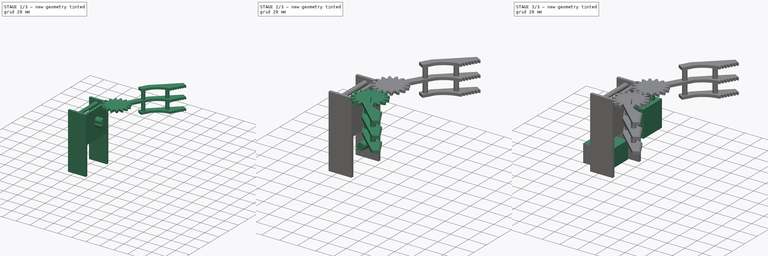
[diagram: build sequence overview — one tinted view per stage of 3, left to right]
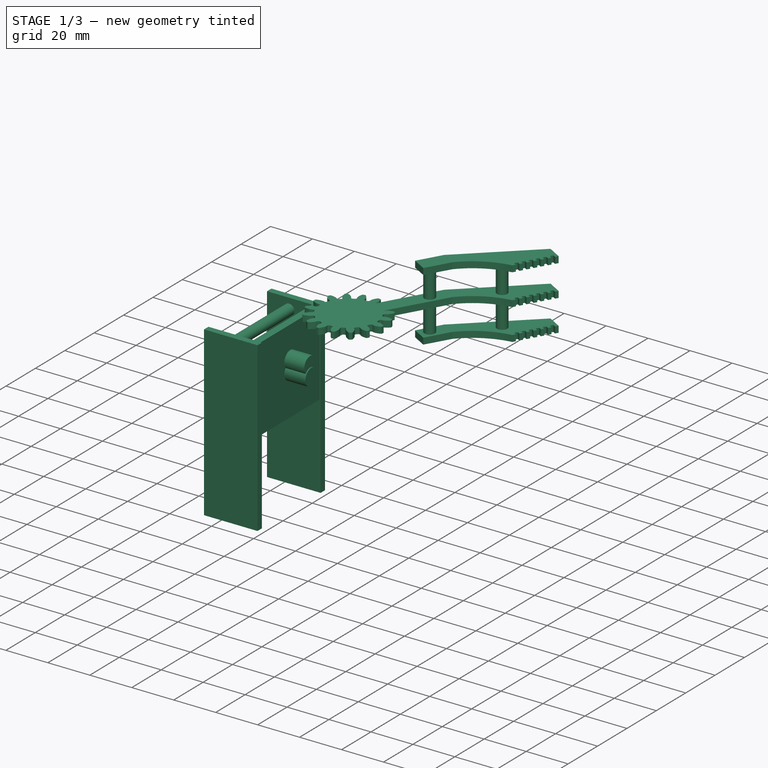
[diagram: stage 1 of 3 — iso view after this stage's code; geometry added in this stage tinted green]
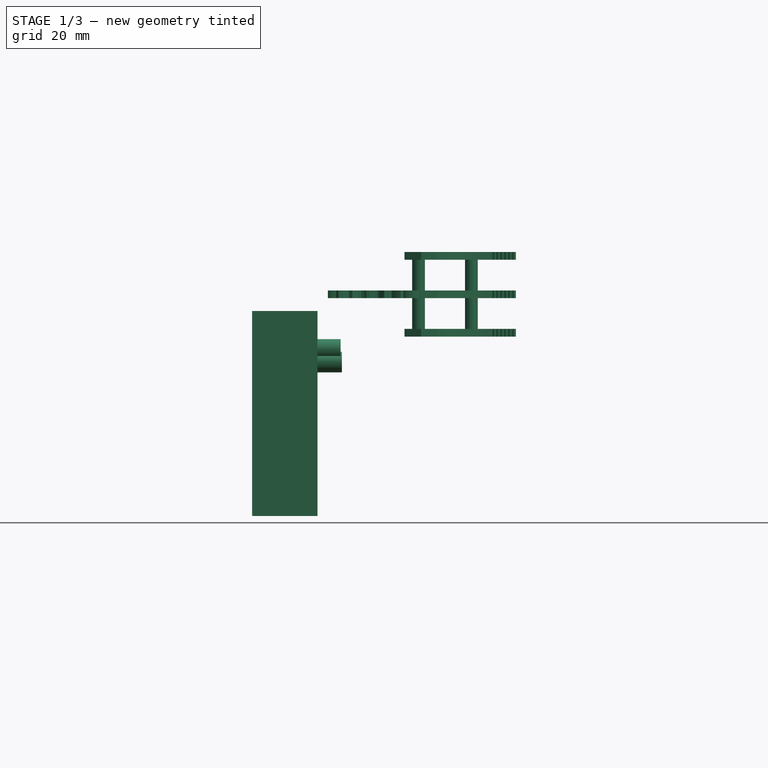
[diagram: stage 1 of 3 — front view after this stage's code; geometry added in this stage tinted green]
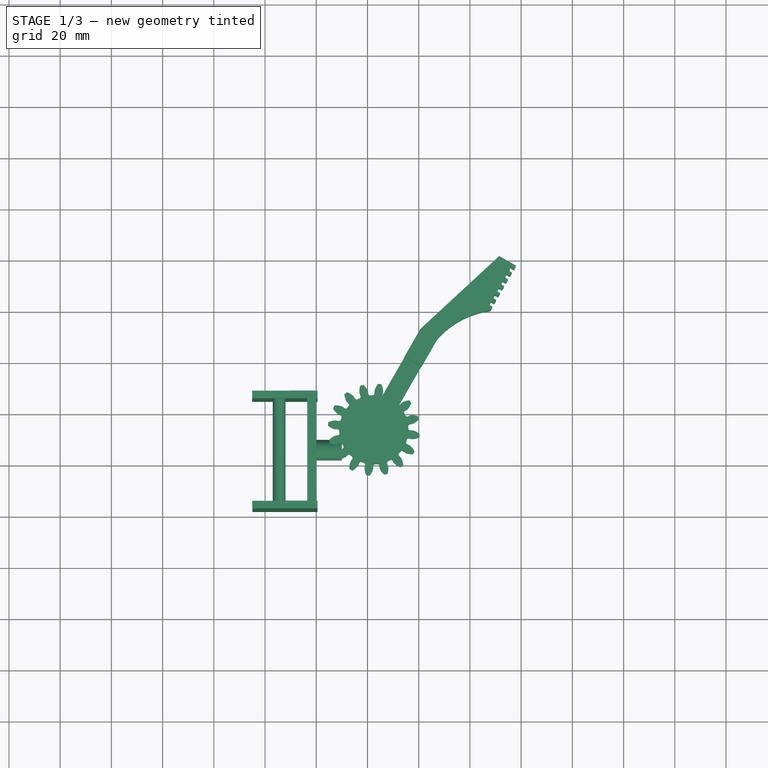
[diagram: stage 1 of 3 — top view after this stage's code; geometry added in this stage tinted green]
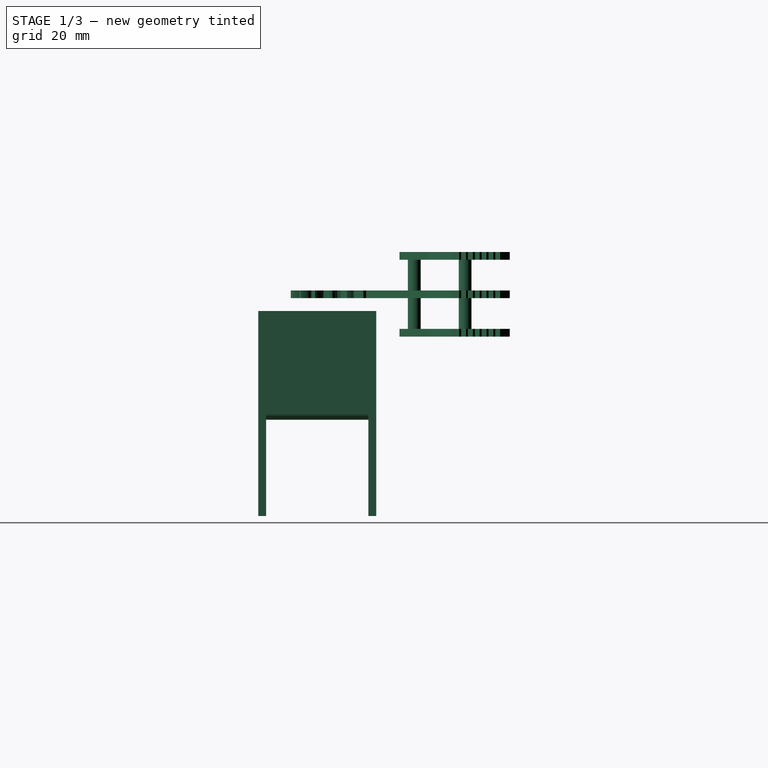
[diagram: stage 1 of 3 — right view after this stage's code; geometry added in this stage tinted green]
FCSTD DOCUMENT  (FreeCAD 0.15R4671 (Git))
Label: robotic_arm2
License: All rights reserved
LicenseURL: http://en.wikipedia.org/wiki/All_rights_reserved
objects: Part::MultiFuse×6, Sketcher::SketchObject×2, PartDesign::Pad×2
note: 12 computed .brp shape members not serialized (recipe doc carries the construction recipe); baked Part::Feature solids carry a one-line shape summary decoded from their .brp

FEATURE [Part::MultiFuse] Fusion004  label="left_hand001"
  Placement = pos=(42.4781,12.5742,80) rot=(0,0,1;1.04894rad)
FEATURE [Part::MultiFuse] Fusion005  label="arm"
  Placement = pos=(42,12.5,85) rot=(0,0,1;0rad)
FEATURE [Part::MultiFuse] Fusion006  label="arm2"
  Placement = pos=(7.45636,25.0131,10) rot=(0,0,1;0.001745rad)
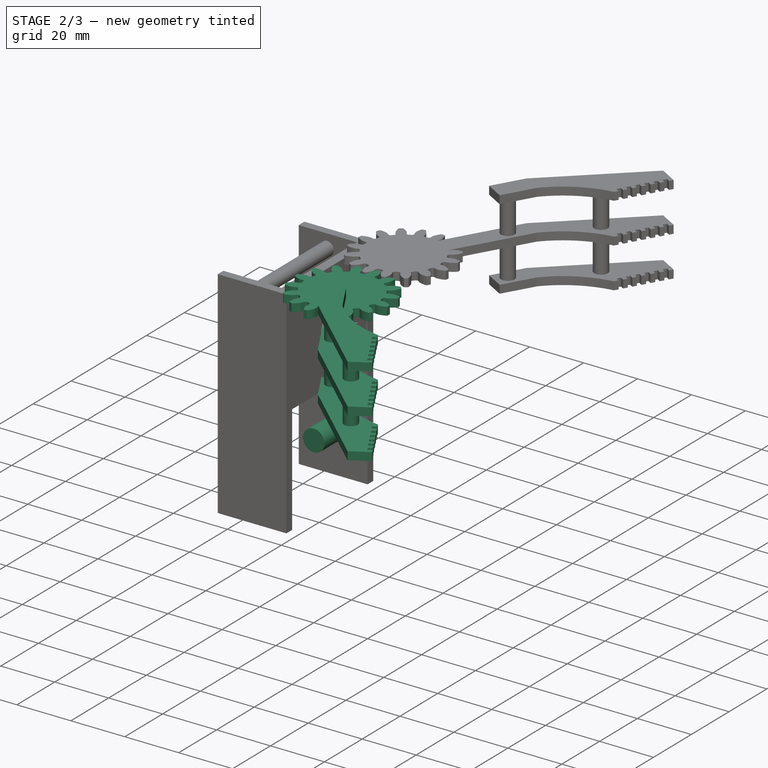
[diagram: stage 2 of 3 — iso view after this stage's code; geometry added in this stage tinted green]
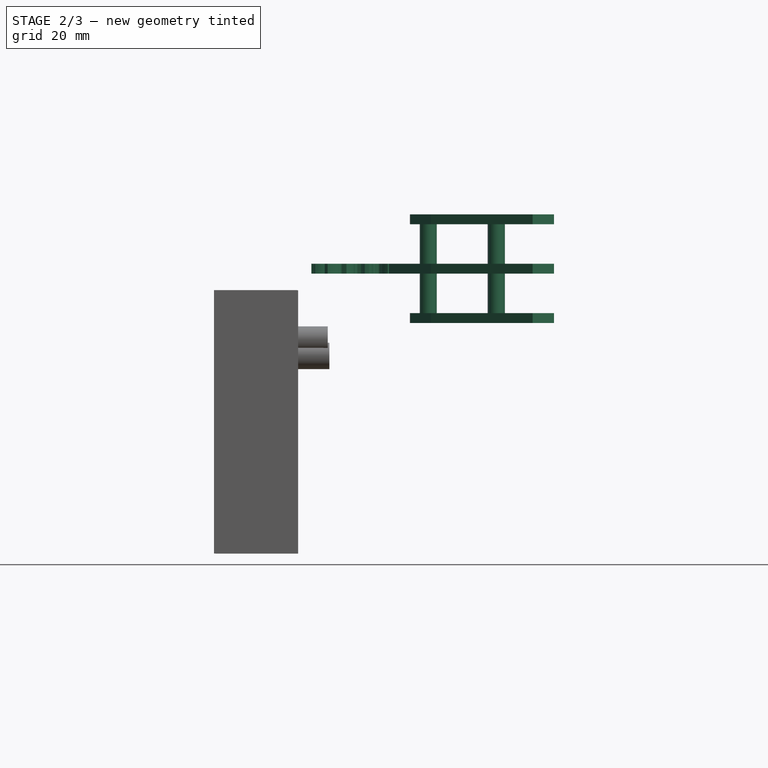
[diagram: stage 2 of 3 — front view after this stage's code; geometry added in this stage tinted green]
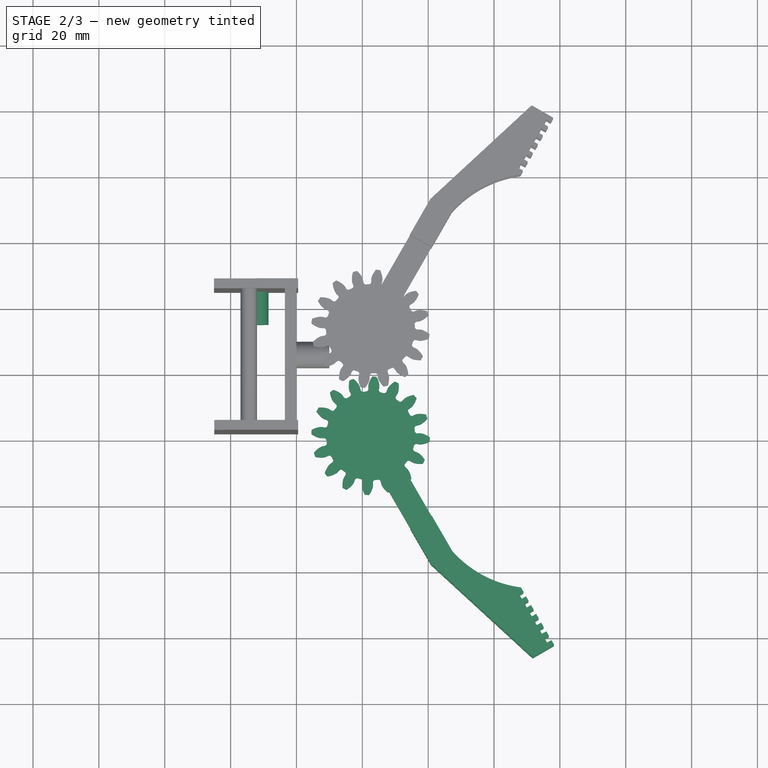
[diagram: stage 2 of 3 — top view after this stage's code; geometry added in this stage tinted green]
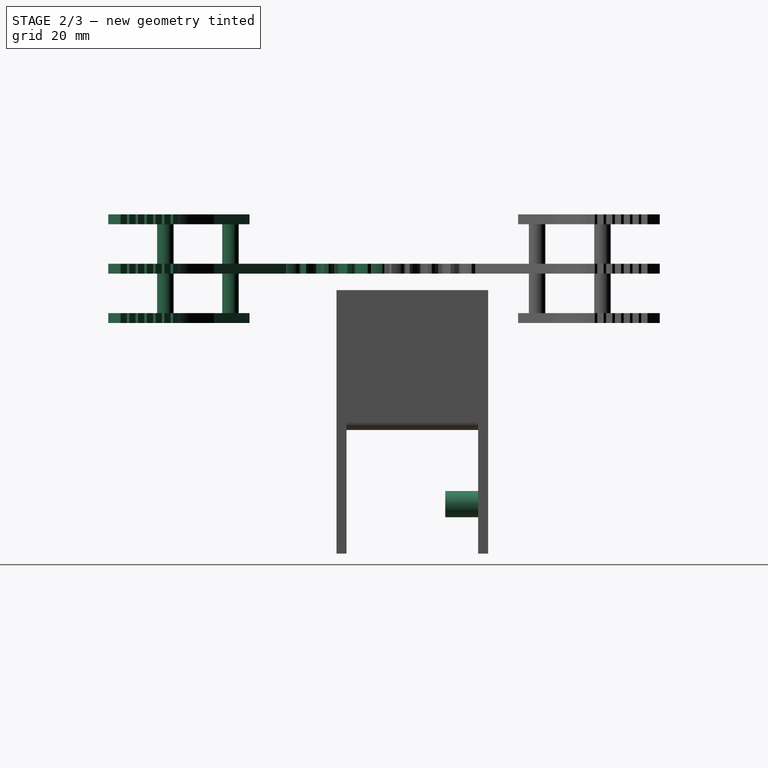
[diagram: stage 2 of 3 — right view after this stage's code; geometry added in this stage tinted green]
FEATURE [Sketcher::SketchObject] Sketch001
  Placement = pos=(0,15,0) rot=(1,0,0;1.5708rad)
  sketch-geometry (2):
    g0: GeomPoint [constr] X=7.5 Y=10 Z=0
    g1: Circle CenterX=7.5 CenterY=10 CenterZ=0 NormalX=0 NormalY=0 NormalZ=1 Radius=4
  constraints (4):
    c: DistanceX(g-1,g0) = 7.5
    c: DistanceY(g-1,g0) = 10
    c: Coincident(g1,g0)
    c: Radius(g1) = 4
FEATURE [PartDesign::Pad] Pad001
  Length = 10
  Length2 = 100
  Placement = pos=(0,15,0) rot=(1,0,0;1.5708rad)
  Reversed = true
  Sketch = -> Sketch001
  Type = 0
FEATURE [Part::MultiFuse] Fusion003  label="right_hand001"
  Placement = pos=(42.5348,-19.9258,80) rot=(0,0,-1;1.04545rad)
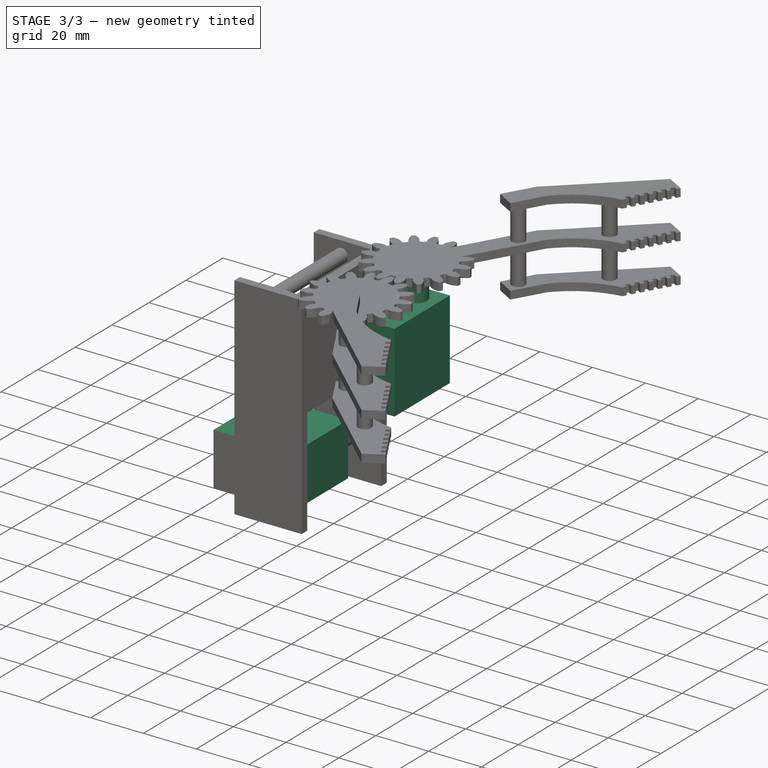
[diagram: stage 3 of 3 — iso view after this stage's code; geometry added in this stage tinted green]
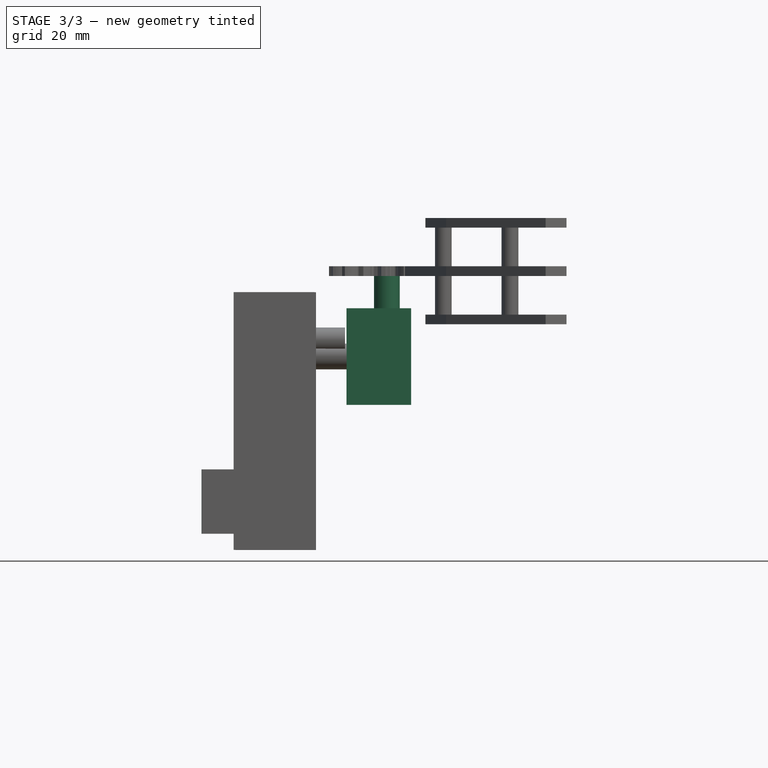
[diagram: stage 3 of 3 — front view after this stage's code; geometry added in this stage tinted green]
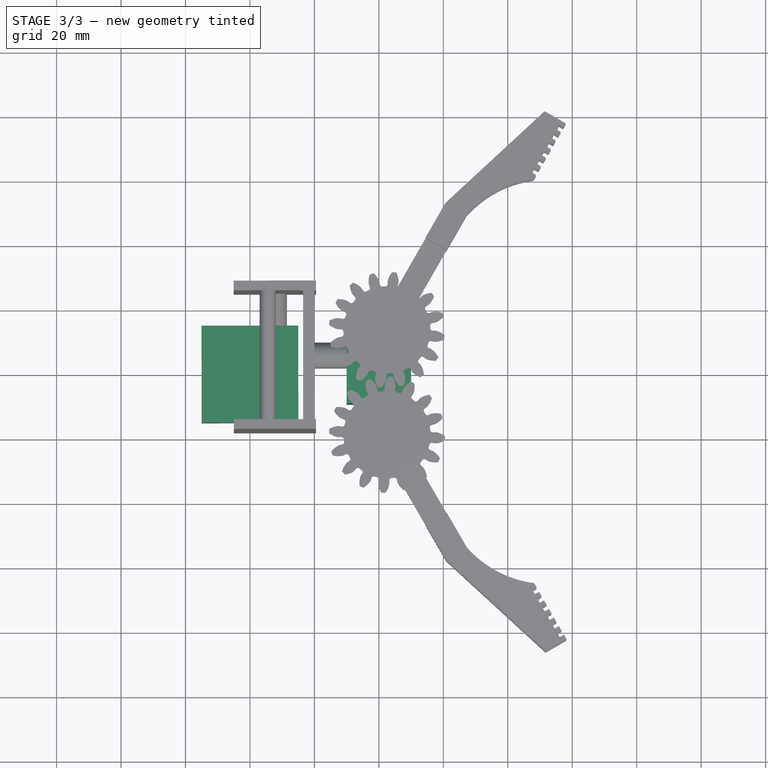
[diagram: stage 3 of 3 — top view after this stage's code; geometry added in this stage tinted green]
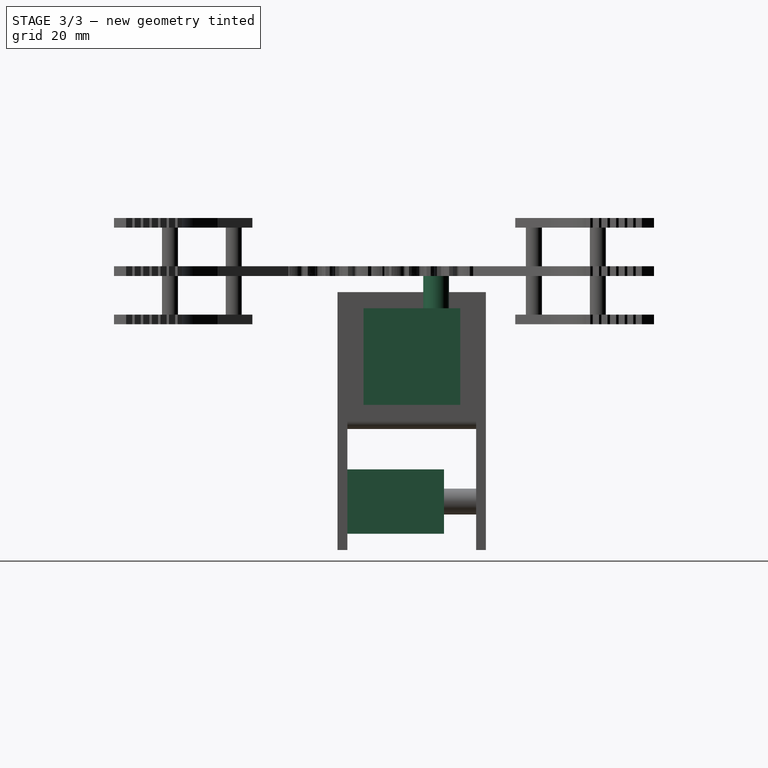
[diagram: stage 3 of 3 — right view after this stage's code; geometry added in this stage tinted green]
FEATURE [Sketcher::SketchObject] Sketch
  sketch-geometry (4):
    g0: LineSegment StartX=-15 StartY=15 StartZ=0 EndX=15 EndY=15 EndZ=0
    g1: LineSegment StartX=15 StartY=15 StartZ=0 EndX=15 EndY=-15 EndZ=0
    g2: LineSegment StartX=15 StartY=-15 StartZ=0 EndX=-15 EndY=-15 EndZ=0
    g3: LineSegment StartX=-15 StartY=-15 StartZ=0 EndX=-15 EndY=15 EndZ=0
  constraints (12):
    c: Coincident(g0,g1)
    c: Coincident(g1,g2)
    c: Coincident(g2,g3)
    c: Coincident(g3,g0)
    c: Horizontal(g0)
    c: Horizontal(g2)
    c: Vertical(g1)
    c: Vertical(g3)
    c: DistanceX(g0,g0) = 30
    c: DistanceY(g1,g0) = 30
    c: Symmetric(g0,g0,g-2)
    c: Symmetric(g0,g1,g-1)
FEATURE [PartDesign::Pad] Pad
  Length = 20
  Length2 = 100
  Sketch = -> Sketch
  Type = 0
FEATURE [Part::MultiFuse] Fusion
  Placement = pos=(0,0,0) rot=(0,0,1;0.001745rad)
  Shapes = -> [Pad,Pad001]
FEATURE [Part::MultiFuse] Fusion002
  Placement = pos=(42.4781,12.5742,80) rot=(0,0,1;0.001745rad)
  Shapes = -> [Pad001]
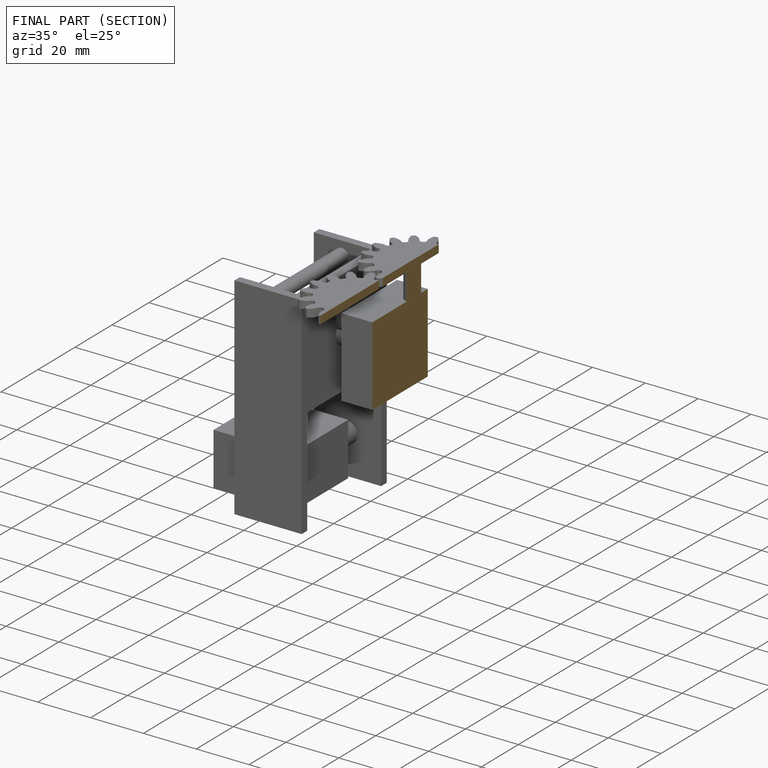
[diagram: finished part — half-section view (interior)]
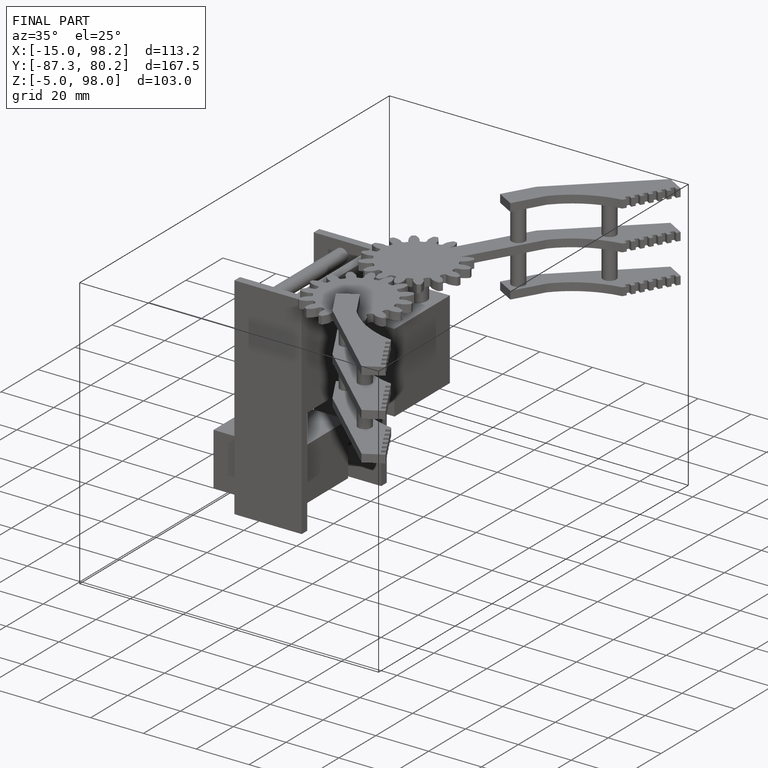
[diagram: finished part — iso view with bounding-box wireframe]
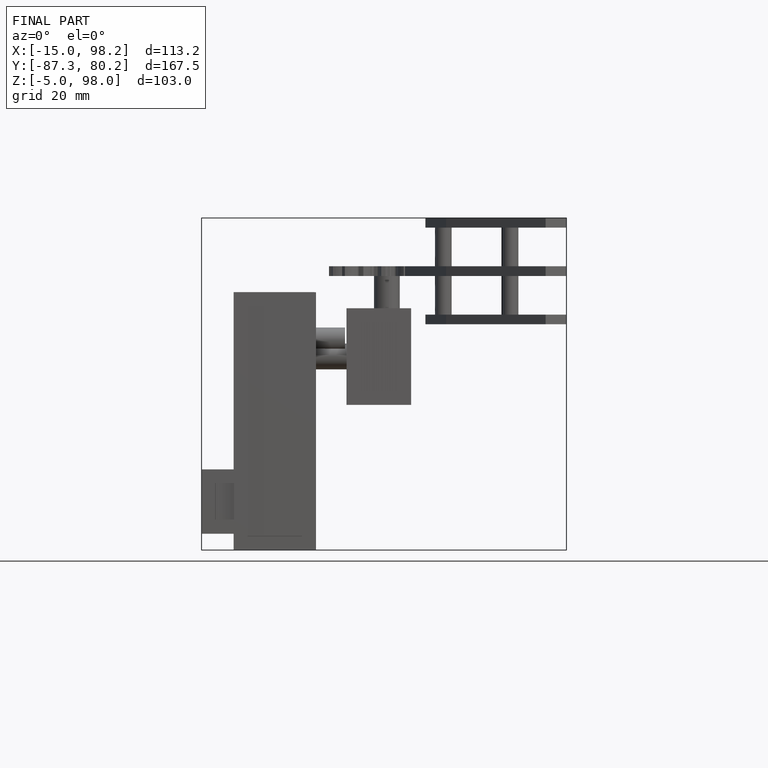
[diagram: finished part — front view with bounding-box wireframe]
